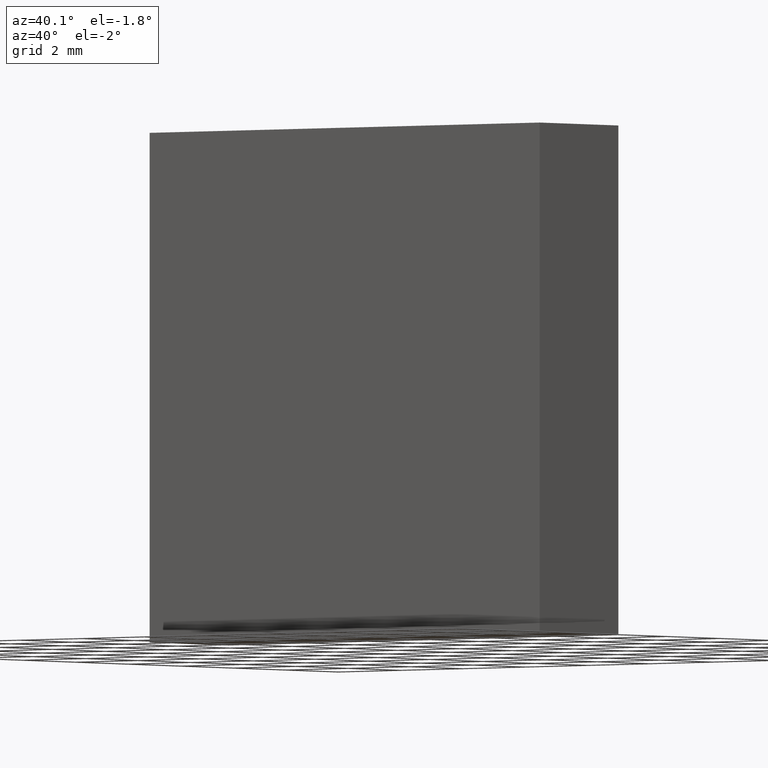
[diagram: clean part render]
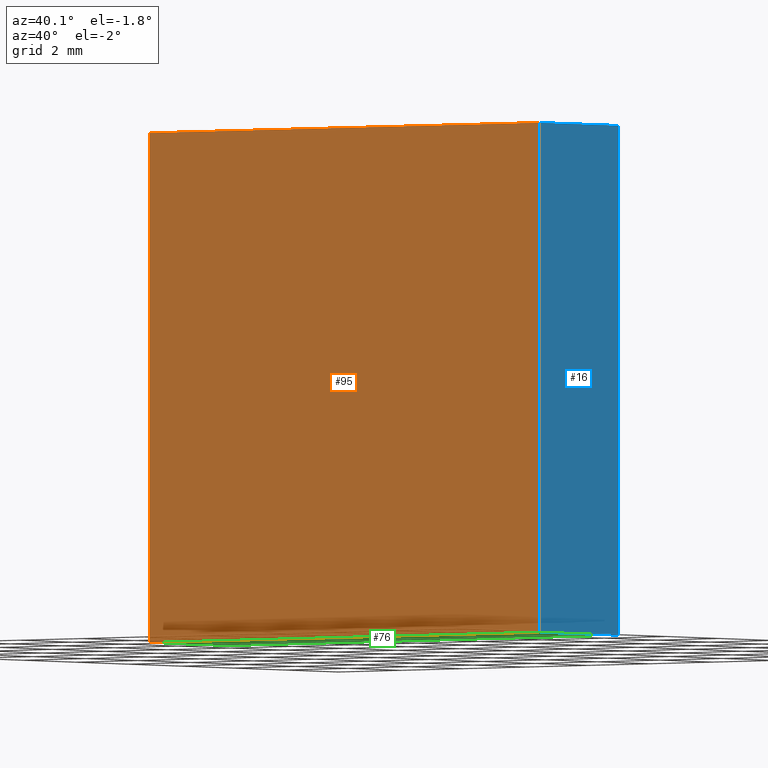
[diagram: same view with three faces highlighted in distinct colors, each labeled with its STEP entity id]
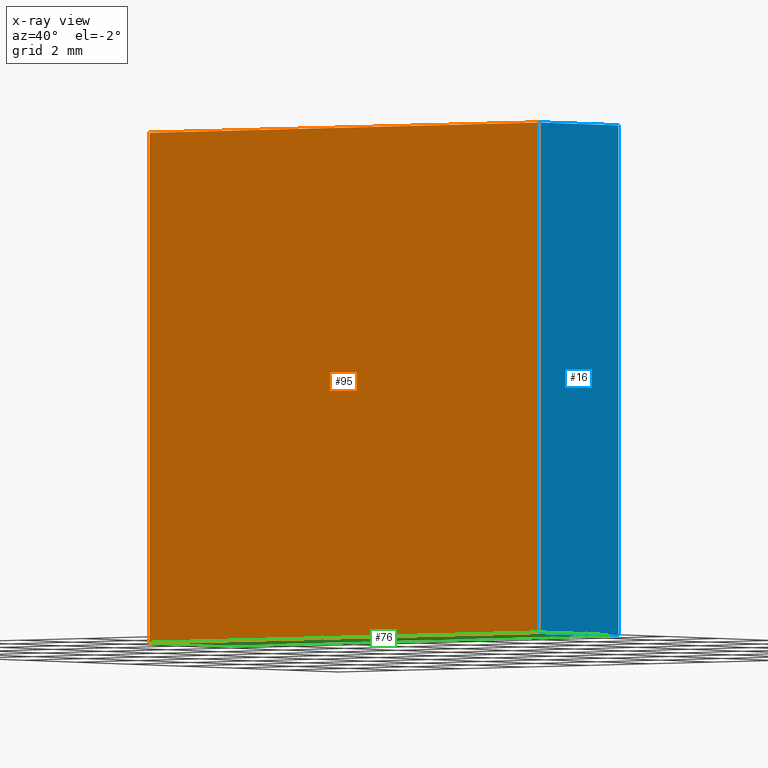
[diagram: x-ray of the same camera — body ghosted, the three highlighted faces saturated]
A machine part, auxiliary view with three faces highlighted in distinct colors.
The next image is the same camera in x-ray (body ghosted, the three faces saturated) — at least one of them is partly hidden behind the body in this view.
Their STEP definitions:

[orange] entity #95 — the highlighted planar face has unit normal (0, 1, 0).
#1 = ORIENTED_EDGE ( 'NONE', *, *, #24, .F. ) ;
#5 = LINE ( 'NONE', #94, #185 ) ;
#7 = EDGE_LOOP ( 'NONE', ( #171, #1, #189, #92 ) ) ;
#11 = EDGE_CURVE ( 'NONE', #13, #104, #96, .T. ) ;
#12 = CARTESIAN_POINT ( 'NONE',  ( 0.0000000000000000000, 0.0000000000000000000, 0.0000000000000000000 ) ) ;
#13 = VERTEX_POINT ( 'NONE', #34 ) ;
#15 = VECTOR ( 'NONE', #32, 1000.000000000000000 ) ;
#24 = EDGE_CURVE ( 'NONE', #104, #48, #5, .T. ) ;
#32 = DIRECTION ( 'NONE',  ( -1.000000000000000000, -0.0000000000000000000, -0.0000000000000000000 ) ) ;
#33 = PLANE ( 'NONE',  #111 ) ;
#34 = CARTESIAN_POINT ( 'NONE',  ( -6.250000000000002700, 0.0000000000000000000, -6.250000000000002700 ) ) ;
#48 = VERTEX_POINT ( 'NONE', #170 ) ;
#63 = VECTOR ( 'NONE', #112, 1000.000000000000000 ) ;
#81 = VECTOR ( 'NONE', #142, 1000.000000000000000 ) ;
#91 = DIRECTION ( 'NONE',  ( 0.0000000000000000000, -0.0000000000000000000, 1.000000000000000000 ) ) ;
#92 = ORIENTED_EDGE ( 'NONE', *, *, #131, .F. ) ;
#94 = CARTESIAN_POINT ( 'NONE',  ( -6.250000000000000900, 0.0000000000000000000, 6.249999999999997300 ) ) ;
#95 = ADVANCED_FACE ( 'NONE', ( #176 ), #33, .F. ) ;
#96 = LINE ( 'NONE', #200, #63 ) ;
#97 = VERTEX_POINT ( 'NONE', #110 ) ;
#104 = VERTEX_POINT ( 'NONE', #169 ) ;
#106 = CARTESIAN_POINT ( 'NONE',  ( 6.249999999999997300, 0.0000000000000000000, -6.250000000000002700 ) ) ;
#110 = CARTESIAN_POINT ( 'NONE',  ( 6.249999999999997300, 0.0000000000000000000, -6.250000000000002700 ) ) ;
#111 = AXIS2_PLACEMENT_3D ( 'NONE', #12, #198, #91 ) ;
#112 = DIRECTION ( 'NONE',  ( 1.387778780781445700E-016, 0.0000000000000000000, 1.000000000000000000 ) ) ;
#131 = EDGE_CURVE ( 'NONE', #97, #13, #147, .T. ) ;
#142 = DIRECTION ( 'NONE',  ( -1.387778780781445700E-016, -0.0000000000000000000, -1.000000000000000000 ) ) ;
#147 = LINE ( 'NONE', #159, #15 ) ;
#159 = CARTESIAN_POINT ( 'NONE',  ( -6.250000000000002700, 0.0000000000000000000, -6.250000000000002700 ) ) ;
#169 = CARTESIAN_POINT ( 'NONE',  ( -6.250000000000000900, 0.0000000000000000000, 6.249999999999997300 ) ) ;
#170 = CARTESIAN_POINT ( 'NONE',  ( 6.249999999999999100, 0.0000000000000000000, 6.249999999999997300 ) ) ;
#171 = ORIENTED_EDGE ( 'NONE', *, *, #190, .F. ) ;
#176 = FACE_OUTER_BOUND ( 'NONE', #7, .T. ) ;
#185 = VECTOR ( 'NONE', #199, 1000.000000000000000 ) ;
#189 = ORIENTED_EDGE ( 'NONE', *, *, #11, .F. ) ;
#190 = EDGE_CURVE ( 'NONE', #48, #97, #191, .T. ) ;
#191 = LINE ( 'NONE', #106, #81 ) ;
#198 = DIRECTION ( 'NONE',  ( 0.0000000000000000000, 1.000000000000000000, 0.0000000000000000000 ) ) ;
#199 = DIRECTION ( 'NONE',  ( 1.000000000000000000, 0.0000000000000000000, 0.0000000000000000000 ) ) ;
#200 = CARTESIAN_POINT ( 'NONE',  ( -6.250000000000002700, 0.0000000000000000000, -6.250000000000002700 ) ) ;

[blue] entity #16 — the highlighted planar face has unit normal (-1, 0, 0).
#16 = ADVANCED_FACE ( 'NONE', ( #23 ), #75, .F. ) ;
#23 = FACE_OUTER_BOUND ( 'NONE', #178, .T. ) ;
#28 = DIRECTION ( 'NONE',  ( -0.0000000000000000000, -1.000000000000000000, -0.0000000000000000000 ) ) ;
#36 = EDGE_CURVE ( 'NONE', #114, #48, #158, .T. ) ;
#37 = LINE ( 'NONE', #124, #65 ) ;
#38 = ORIENTED_EDGE ( 'NONE', *, *, #190, .T. ) ;
#48 = VERTEX_POINT ( 'NONE', #170 ) ;
#51 = ORIENTED_EDGE ( 'NONE', *, *, #165, .F. ) ;
#57 = CARTESIAN_POINT ( 'NONE',  ( 6.249999999999997300, 3.000000000000000000, -6.250000000000002700 ) ) ;
#58 = CARTESIAN_POINT ( 'NONE',  ( 6.249999999999999100, 3.000000000000000000, 6.249999999999997300 ) ) ;
#59 = ORIENTED_EDGE ( 'NONE', *, *, #202, .F. ) ;
#61 = DIRECTION ( 'NONE',  ( 1.387778780781445400E-016, 0.0000000000000000000, 1.000000000000000000 ) ) ;
#64 = AXIS2_PLACEMENT_3D ( 'NONE', #57, #172, #61 ) ;
#65 = VECTOR ( 'NONE', #28, 1000.000000000000000 ) ;
#69 = VECTOR ( 'NONE', #86, 1000.000000000000000 ) ;
#75 = PLANE ( 'NONE',  #64 ) ;
#81 = VECTOR ( 'NONE', #142, 1000.000000000000000 ) ;
#84 = ORIENTED_EDGE ( 'NONE', *, *, #36, .T. ) ;
#86 = DIRECTION ( 'NONE',  ( -1.387778780781445700E-016, -0.0000000000000000000, -1.000000000000000000 ) ) ;
#93 = DIRECTION ( 'NONE',  ( -0.0000000000000000000, -1.000000000000000000, -0.0000000000000000000 ) ) ;
#97 = VERTEX_POINT ( 'NONE', #110 ) ;
#106 = CARTESIAN_POINT ( 'NONE',  ( 6.249999999999997300, 0.0000000000000000000, -6.250000000000002700 ) ) ;
#110 = CARTESIAN_POINT ( 'NONE',  ( 6.249999999999997300, 0.0000000000000000000, -6.250000000000002700 ) ) ;
#114 = VERTEX_POINT ( 'NONE', #58 ) ;
#124 = CARTESIAN_POINT ( 'NONE',  ( 6.249999999999997300, 3.000000000000000000, -6.250000000000002700 ) ) ;
#142 = DIRECTION ( 'NONE',  ( -1.387778780781445700E-016, -0.0000000000000000000, -1.000000000000000000 ) ) ;
#156 = CARTESIAN_POINT ( 'NONE',  ( 6.249999999999997300, 3.000000000000000000, -6.250000000000002700 ) ) ;
#158 = LINE ( 'NONE', #160, #164 ) ;
#160 = CARTESIAN_POINT ( 'NONE',  ( 6.249999999999999100, 3.000000000000000000, 6.249999999999997300 ) ) ;
#163 = VERTEX_POINT ( 'NONE', #156 ) ;
#164 = VECTOR ( 'NONE', #93, 1000.000000000000000 ) ;
#165 = EDGE_CURVE ( 'NONE', #163, #97, #37, .T. ) ;
#167 = LINE ( 'NONE', #193, #69 ) ;
#170 = CARTESIAN_POINT ( 'NONE',  ( 6.249999999999999100, 0.0000000000000000000, 6.249999999999997300 ) ) ;
#172 = DIRECTION ( 'NONE',  ( -1.000000000000000000, 0.0000000000000000000, 1.387778780781445400E-016 ) ) ;
#178 = EDGE_LOOP ( 'NONE', ( #38, #51, #59, #84 ) ) ;
#190 = EDGE_CURVE ( 'NONE', #48, #97, #191, .T. ) ;
#191 = LINE ( 'NONE', #106, #81 ) ;
#193 = CARTESIAN_POINT ( 'NONE',  ( 6.249999999999997300, 3.000000000000000000, -6.250000000000002700 ) ) ;
#202 = EDGE_CURVE ( 'NONE', #114, #163, #167, .T. ) ;

[green] entity #76 — the highlighted planar face has unit normal (0, 0, 1).
#13 = VERTEX_POINT ( 'NONE', #34 ) ;
#15 = VECTOR ( 'NONE', #32, 1000.000000000000000 ) ;
#21 = LINE ( 'NONE', #122, #31 ) ;
#28 = DIRECTION ( 'NONE',  ( -0.0000000000000000000, -1.000000000000000000, -0.0000000000000000000 ) ) ;
#31 = VECTOR ( 'NONE', #55, 1000.000000000000000 ) ;
#32 = DIRECTION ( 'NONE',  ( -1.000000000000000000, -0.0000000000000000000, -0.0000000000000000000 ) ) ;
#34 = CARTESIAN_POINT ( 'NONE',  ( -6.250000000000002700, 0.0000000000000000000, -6.250000000000002700 ) ) ;
#37 = LINE ( 'NONE', #124, #65 ) ;
#43 = CARTESIAN_POINT ( 'NONE',  ( -6.250000000000002700, 3.000000000000000000, -6.250000000000002700 ) ) ;
#45 = DIRECTION ( 'NONE',  ( 0.0000000000000000000, 0.0000000000000000000, 1.000000000000000000 ) ) ;
#47 = PLANE ( 'NONE',  #83 ) ;
#55 = DIRECTION ( 'NONE',  ( -1.000000000000000000, -0.0000000000000000000, -0.0000000000000000000 ) ) ;
#65 = VECTOR ( 'NONE', #28, 1000.000000000000000 ) ;
#67 = ORIENTED_EDGE ( 'NONE', *, *, #186, .F. ) ;
#73 = CARTESIAN_POINT ( 'NONE',  ( -6.250000000000002700, 3.000000000000000000, -6.250000000000002700 ) ) ;
#74 = CARTESIAN_POINT ( 'NONE',  ( -6.250000000000002700, 3.000000000000000000, -6.250000000000002700 ) ) ;
#76 = ADVANCED_FACE ( 'NONE', ( #113 ), #47, .F. ) ;
#82 = EDGE_LOOP ( 'NONE', ( #123, #67, #135, #152 ) ) ;
#83 = AXIS2_PLACEMENT_3D ( 'NONE', #74, #45, #145 ) ;
#97 = VERTEX_POINT ( 'NONE', #110 ) ;
#100 = LINE ( 'NONE', #43, #117 ) ;
#101 = VERTEX_POINT ( 'NONE', #73 ) ;
#110 = CARTESIAN_POINT ( 'NONE',  ( 6.249999999999997300, 0.0000000000000000000, -6.250000000000002700 ) ) ;
#113 = FACE_OUTER_BOUND ( 'NONE', #82, .T. ) ;
#117 = VECTOR ( 'NONE', #194, 1000.000000000000000 ) ;
#122 = CARTESIAN_POINT ( 'NONE',  ( -6.250000000000002700, 3.000000000000000000, -6.250000000000002700 ) ) ;
#123 = ORIENTED_EDGE ( 'NONE', *, *, #131, .T. ) ;
#124 = CARTESIAN_POINT ( 'NONE',  ( 6.249999999999997300, 3.000000000000000000, -6.250000000000002700 ) ) ;
#131 = EDGE_CURVE ( 'NONE', #97, #13, #147, .T. ) ;
#135 = ORIENTED_EDGE ( 'NONE', *, *, #174, .F. ) ;
#145 = DIRECTION ( 'NONE',  ( 1.000000000000000000, 0.0000000000000000000, -0.0000000000000000000 ) ) ;
#147 = LINE ( 'NONE', #159, #15 ) ;
#152 = ORIENTED_EDGE ( 'NONE', *, *, #165, .T. ) ;
#156 = CARTESIAN_POINT ( 'NONE',  ( 6.249999999999997300, 3.000000000000000000, -6.250000000000002700 ) ) ;
#159 = CARTESIAN_POINT ( 'NONE',  ( -6.250000000000002700, 0.0000000000000000000, -6.250000000000002700 ) ) ;
#163 = VERTEX_POINT ( 'NONE', #156 ) ;
#165 = EDGE_CURVE ( 'NONE', #163, #97, #37, .T. ) ;
#174 = EDGE_CURVE ( 'NONE', #163, #101, #21, .T. ) ;
#186 = EDGE_CURVE ( 'NONE', #101, #13, #100, .T. ) ;
#194 = DIRECTION ( 'NONE',  ( -0.0000000000000000000, -1.000000000000000000, -0.0000000000000000000 ) ) ;